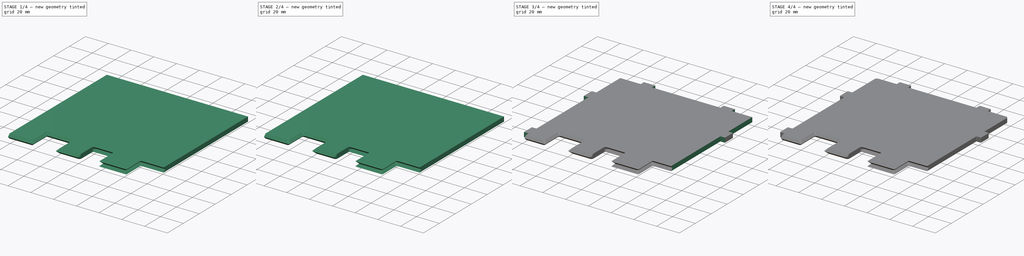
[diagram: build sequence overview — one tinted view per stage of 4, left to right]
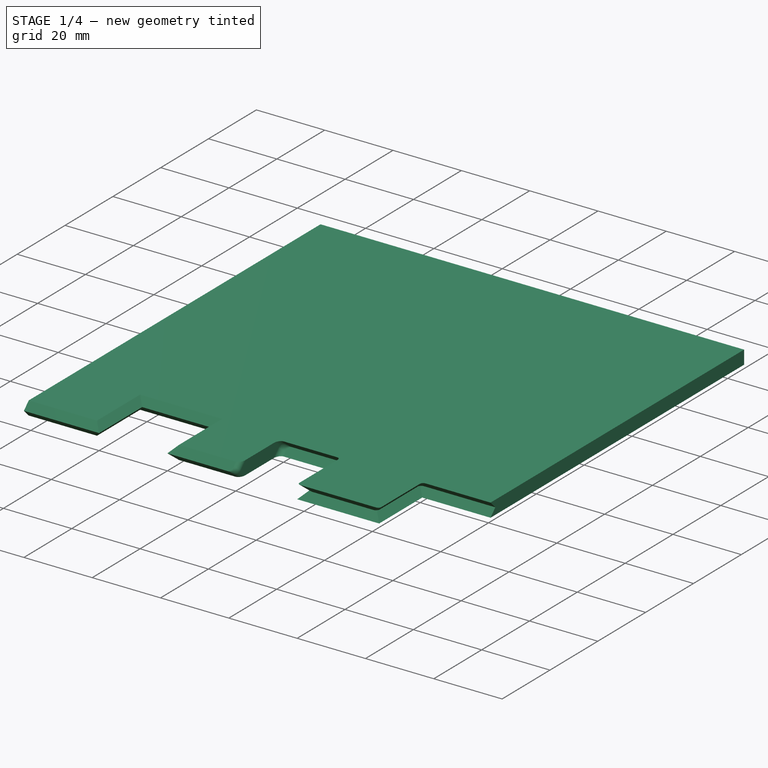
[diagram: stage 1 of 4 — iso view after this stage's code; geometry added in this stage tinted green]
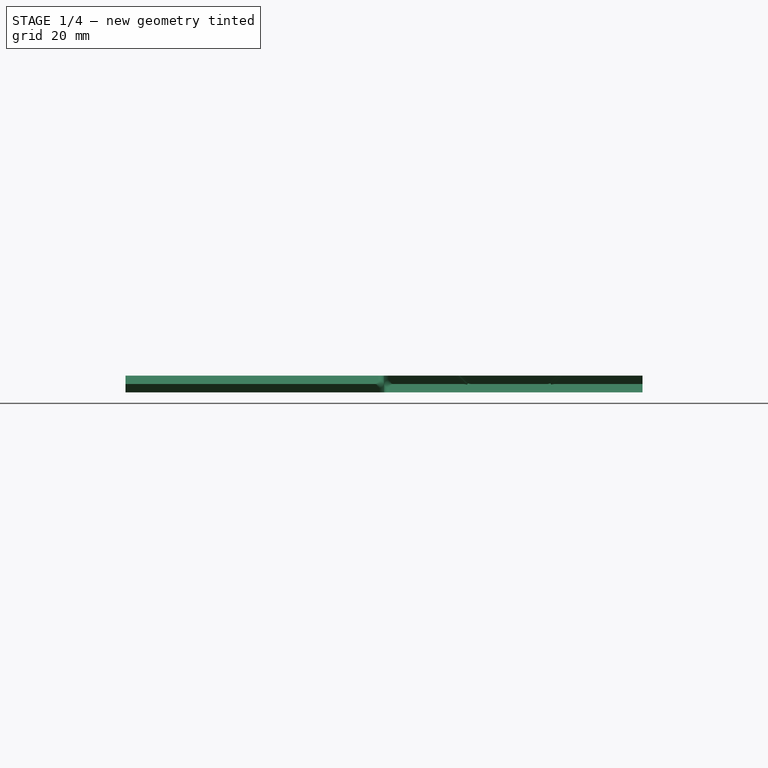
[diagram: stage 1 of 4 — front view after this stage's code; geometry added in this stage tinted green]
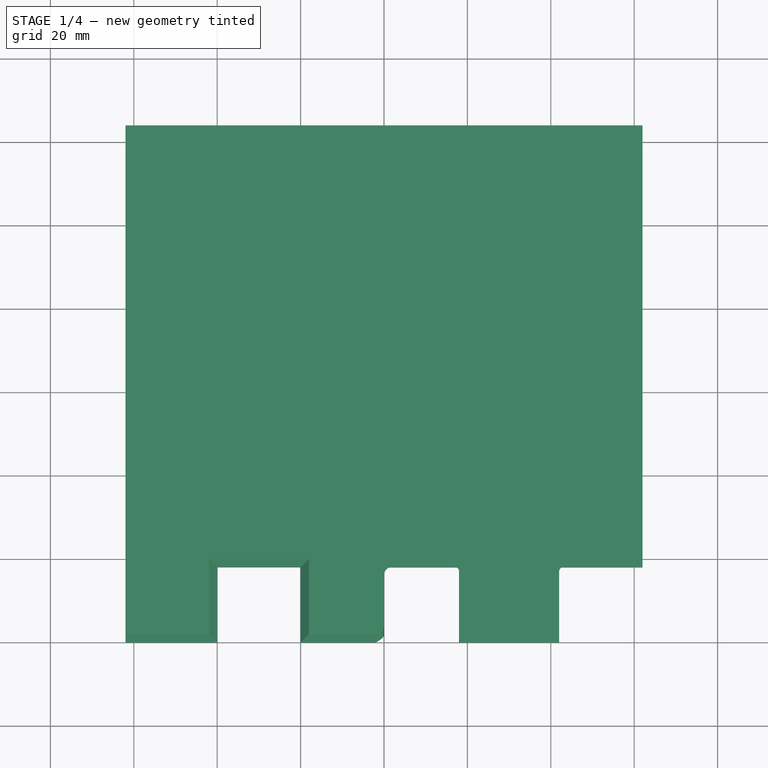
[diagram: stage 1 of 4 — top view after this stage's code; geometry added in this stage tinted green]
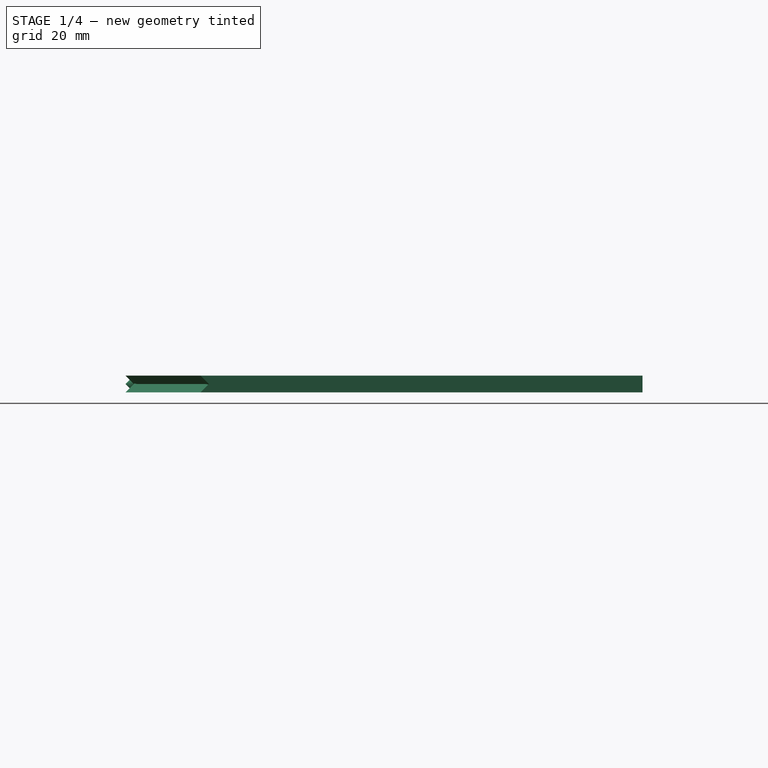
[diagram: stage 1 of 4 — right view after this stage's code; geometry added in this stage tinted green]
FCSTD DOCUMENT  (FreeCAD 0.18R16131 (Git))
Label: HBlock1Half
License: All rights reserved
LicenseURL: http://en.wikipedia.org/wiki/All_rights_reserved
objects: Sketcher::SketchObject×6, PartDesign::Fillet×6, PartDesign::Plane×2, PartDesign::Pocket×2, PartDesign::Pad×1, PartDesign::SubtractiveLoft×1, PartDesign::Body×1, App::Part×1, Part::FeaturePython×1
note: 24 computed .brp shape members not serialized (recipe doc carries the construction recipe); baked Part::Feature solids carry a one-line shape summary decoded from their .brp

FEATURE [Sketcher::SketchObject] Sketch
  MapMode = 5
  Support = -> [XY_Plane001]
  sketch-geometry (4):
    g0: LineSegment StartX=-62 StartY=0 StartZ=0 EndX=62 EndY=0 EndZ=0
    g1: LineSegment StartX=62 StartY=0 StartZ=0 EndX=62 EndY=124 EndZ=0
    g2: LineSegment StartX=62 StartY=124 StartZ=0 EndX=-62 EndY=124 EndZ=0
    g3: LineSegment StartX=-62 StartY=124 StartZ=0 EndX=-62 EndY=0 EndZ=0
  constraints (11):
    c: Coincident(g0,g1)
    c: Coincident(g1,g2)
    c: Coincident(g2,g3)
    c: Coincident(g3,g0)
    c: Horizontal(g0)
    c: Vertical(g1)
    c: Vertical(g3)
    c: PointOnObject(g0,g-1)
    c: Symmetric(g2,g1,g-2)
    c: Distance(g2) = 124
    c: Distance(g3) = 124
FEATURE [PartDesign::Pad] Pad
  Length = 4
  Length2 = 100
  Midplane = true
  Profile = -> Sketch
  Type = 0
FEATURE [Sketcher::SketchObject] Sketch001  label="NotchMid_Sketch"
  MapMode = 5
  Support = -> [XY_Plane001]
  sketch-geometry (14):
    g0: LineSegment StartX=-40 StartY=0 StartZ=0 EndX=-40 EndY=18 EndZ=0
    g1: LineSegment StartX=-40 StartY=18 StartZ=0 EndX=-20 EndY=18 EndZ=0
    g2: LineSegment StartX=-20 StartY=18 StartZ=0 EndX=-20 EndY=0 EndZ=0
    g3: LineSegment StartX=-20 StartY=0 StartZ=0 EndX=0 EndY=0 EndZ=0
    g4: LineSegment StartX=0 StartY=0 StartZ=0 EndX=0 EndY=20 EndZ=0
    g5: LineSegment StartX=0 StartY=20 StartZ=0 EndX=20 EndY=20 EndZ=0
    g6: LineSegment StartX=20 StartY=20 StartZ=0 EndX=20 EndY=2 EndZ=0
    g7: LineSegment StartX=20 StartY=2 StartZ=0 EndX=40 EndY=2 EndZ=0
    g8: LineSegment StartX=40 StartY=2 StartZ=0 EndX=40 EndY=20 EndZ=0
    g9: LineSegment StartX=40 StartY=20 StartZ=0 EndX=70 EndY=20 EndZ=0
    g10: LineSegment StartX=-40 StartY=0 StartZ=0 EndX=-70 EndY=0 EndZ=0
    g11: LineSegment StartX=-70 StartY=0 StartZ=0 EndX=-70 EndY=-20 EndZ=0
    g12: LineSegment StartX=-70 StartY=-20 StartZ=0 EndX=70 EndY=-20 EndZ=0
    g13: LineSegment StartX=70 StartY=-20 StartZ=0 EndX=70 EndY=20 EndZ=0
  constraints (40):
    c: PointOnObject(g0,g-1)
    c: Vertical(g0)
    c: Coincident(g1,g0)
    c: Horizontal(g1)
    c: Coincident(g2,g1)
    c: Vertical(g2)
    c: Coincident(g3,g2)
    c: Coincident(g3,g-1)
    c: Coincident(g4,g3)
    c: PointOnObject(g4,g-2)
    c: Coincident(g5,g4)
    c: Horizontal(g5)
    c: Coincident(g6,g5)
    c: Vertical(g6)
    c: Coincident(g7,g6)
    c: Coincident(g8,g7)
    c: Vertical(g8)
    c: Coincident(g9,g8)
    c: Horizontal(g9)
    c: Coincident(g10,g0)
    c: PointOnObject(g10,g-1)
    c: Equal(g0,g2)
    c: Equal(g6,g8)
    c: Coincident(g11,g10)
    c: Vertical(g11)
    c: Coincident(g12,g11)
    c: Coincident(g13,g12)
    c: Coincident(g13,g9)
    c: Vertical(g13)
    c: Distance(g12) = 140
    c: Distance(g0) = 18
    c: Distance(g11) = 20
    c: Symmetric(g11,g12,g-2)
    c: Distance(g1) = 20
    c: Distance(g3) = 20
    c: Distance(g5) = 20
    c: Distance(g7) = 20
    c: Distance(g8) = 18
    c: Horizontal(g7)
    c: DistanceY(g-1,g7) = 2
FEATURE [PartDesign::Plane] DatumPlane  label="NotchTop_Plane"
  AttachmentOffset = pos=(0,0,2) rot=(0,0,1;0rad)
  Length = 149.781
  MapMode = 5
  Placement = pos=(0,0,2) rot=(0,0,1;0rad)
  ResizeMode = 0
  Support = -> [XY_Plane001]
  Width = 159.781
FEATURE [PartDesign::Plane] DatumPlane001  label="NotchBottom_Plane"
  AttachmentOffset = pos=(0,0,-2) rot=(0,0,1;0rad)
  Length = 149.781
  MapMode = 5
  Placement = pos=(0,0,-2) rot=(0,0,1;0rad)
  ResizeMode = 0
  Support = -> [XY_Plane001]
  Width = 159.781
FEATURE [Sketcher::SketchObject] Sketch002  label="NotchTop_Sketch"
  MapMode = 5
  Placement = pos=(0,0,2) rot=(0,0,1;0rad)
  Support = -> [DatumPlane]
  sketch-geometry (14):
    g0: LineSegment StartX=-42 StartY=2 StartZ=0 EndX=-42 EndY=20 EndZ=0
    g1: LineSegment StartX=-42 StartY=20 StartZ=0 EndX=-18 EndY=20 EndZ=0
    g2: LineSegment StartX=-18 StartY=20 StartZ=0 EndX=-18 EndY=2 EndZ=0
    g3: LineSegment StartX=-18 StartY=2 StartZ=0 EndX=0 EndY=2 EndZ=0
    g4: LineSegment StartX=0 StartY=2 StartZ=0 EndX=0 EndY=18 EndZ=0
    g5: LineSegment StartX=0 StartY=18 StartZ=0 EndX=18 EndY=18 EndZ=0
    g6: LineSegment StartX=18 StartY=18 StartZ=0 EndX=18 EndY=0 EndZ=0
    g7: LineSegment StartX=18 StartY=0 StartZ=0 EndX=42 EndY=0 EndZ=0
    g8: LineSegment StartX=42 StartY=0 StartZ=0 EndX=42 EndY=18 EndZ=0
    g9: LineSegment StartX=42 StartY=18 StartZ=0 EndX=70 EndY=18 EndZ=0
    g10: LineSegment StartX=-42 StartY=2 StartZ=0 EndX=-70 EndY=2 EndZ=0
    g11: LineSegment StartX=-70 StartY=2 StartZ=0 EndX=-70 EndY=-18 EndZ=0
    g12: LineSegment StartX=-70 StartY=-18 StartZ=0 EndX=70 EndY=-18 EndZ=0
    g13: LineSegment StartX=70 StartY=-18 StartZ=0 EndX=70 EndY=18 EndZ=0
  constraints (41):
    c: Vertical(g0)
    c: Coincident(g1,g0)
    c: Horizontal(g1)
    c: Coincident(g2,g1)
    c: Vertical(g2)
    c: Coincident(g3,g2)
    c: PointOnObject(g4,g-2)
    c: Coincident(g5,g4)
    c: Horizontal(g5)
    c: Coincident(g6,g5)
    c: Vertical(g6)
    c: Coincident(g7,g6)
    c: Coincident(g8,g7)
    c: Vertical(g8)
    c: Coincident(g9,g8)
    c: Horizontal(g9)
    c: Coincident(g10,g0)
    c: Equal(g0,g2)
    c: Equal(g6,g8)
    c: Coincident(g11,g10)
    c: Vertical(g11)
    c: Coincident(g12,g11)
    c: Coincident(g13,g12)
    c: Coincident(g13,g9)
    c: Vertical(g13)
    c: Distance(g12) = 140
    c: Distance(g0) = 18
    c: Distance(g11) = 20
    c: Symmetric(g11,g12,g-2)
    c: Distance(g1) = 24
    c: Distance(g3) = 18
    c: Distance(g5) = 18
    c: Distance(g7) = 24
    c: Distance(g8) = 18
    c: Horizontal(g7)
    c: PointOnObject(g7,g-1)
    c: Horizontal(g10)
    c: DistanceY(g-1,g0) = 2
    c: Vertical(g4)
    c: Coincident(g4,g3)
    c: Horizontal(g3)
FEATURE [Sketcher::SketchObject] Sketch003  label="NotchBottom_Sketch"
  MapMode = 5
  Placement = pos=(0,0,-2) rot=(0,0,1;0rad)
  Support = -> [DatumPlane001]
  sketch-geometry (14):
    g0: LineSegment StartX=-42 StartY=2 StartZ=0 EndX=-42 EndY=20 EndZ=0
    g1: LineSegment StartX=-42 StartY=20 StartZ=0 EndX=-18 EndY=20 EndZ=0
    g2: LineSegment StartX=-18 StartY=20 StartZ=0 EndX=-18 EndY=2 EndZ=0
    g3: LineSegment StartX=-18 StartY=2 StartZ=0 EndX=0 EndY=2 EndZ=0
    g4: LineSegment StartX=0 StartY=2 StartZ=0 EndX=0 EndY=18 EndZ=0
    g5: LineSegment StartX=0 StartY=18 StartZ=0 EndX=18 EndY=18 EndZ=0
    g6: LineSegment StartX=18 StartY=18 StartZ=0 EndX=18 EndY=0 EndZ=0
    g7: LineSegment StartX=18 StartY=0 StartZ=0 EndX=42 EndY=0 EndZ=0
    g8: LineSegment StartX=42 StartY=0 StartZ=0 EndX=42 EndY=18 EndZ=0
    g9: LineSegment StartX=42 StartY=18 StartZ=0 EndX=70 EndY=18 EndZ=0
    g10: LineSegment StartX=-42 StartY=2 StartZ=0 EndX=-70 EndY=2 EndZ=0
    g11: LineSegment StartX=-70 StartY=2 StartZ=0 EndX=-70 EndY=-18 EndZ=0
    g12: LineSegment StartX=-70 StartY=-18 StartZ=0 EndX=70 EndY=-18 EndZ=0
    g13: LineSegment StartX=70 StartY=-18 StartZ=0 EndX=70 EndY=18 EndZ=0
  constraints (41):
    c: Vertical(g0)
    c: Coincident(g1,g0)
    c: Horizontal(g1)
    c: Coincident(g2,g1)
    c: Vertical(g2)
    c: Coincident(g3,g2)
    c: PointOnObject(g4,g-2)
    c: Coincident(g5,g4)
    c: Horizontal(g5)
    c: Coincident(g6,g5)
    c: Vertical(g6)
    c: Coincident(g7,g6)
    c: Coincident(g8,g7)
    c: Vertical(g8)
    c: Coincident(g9,g8)
    c: Horizontal(g9)
    c: Coincident(g10,g0)
    c: Equal(g0,g2)
    c: Equal(g6,g8)
    c: Coincident(g11,g10)
    c: Vertical(g11)
    c: Coincident(g12,g11)
    c: Coincident(g13,g12)
    c: Coincident(g13,g9)
    c: Vertical(g13)
    c: Distance(g12) = 140
    c: Distance(g0) = 18
    c: Distance(g11) = 20
    c: Symmetric(g11,g12,g-2)
    c: Distance(g1) = 24
    c: Distance(g3) = 18
    c: Distance(g5) = 18
    c: Distance(g7) = 24
    c: Distance(g8) = 18
    c: Horizontal(g7)
    c: PointOnObject(g7,g-1)
    c: Horizontal(g10)
    c: DistanceY(g-1,g0) = 2
    c: Vertical(g4)
    c: Coincident(g4,g3)
    c: Horizontal(g3)
FEATURE [PartDesign::SubtractiveLoft] SubtractiveLoft
  BaseFeature = -> Pad
  Closed = false
  Profile = -> Sketch003
  Ruled = true
  Sections = -> [Sketch001,Sketch002]
FEATURE [PartDesign::Fillet] Fillet
  Base = -> SubtractiveLoft [Edge49,Edge51,Edge47,Edge45,Edge65,Edge64,Edge19,Edge21]
  BaseFeature = -> SubtractiveLoft
  Radius = 1.47
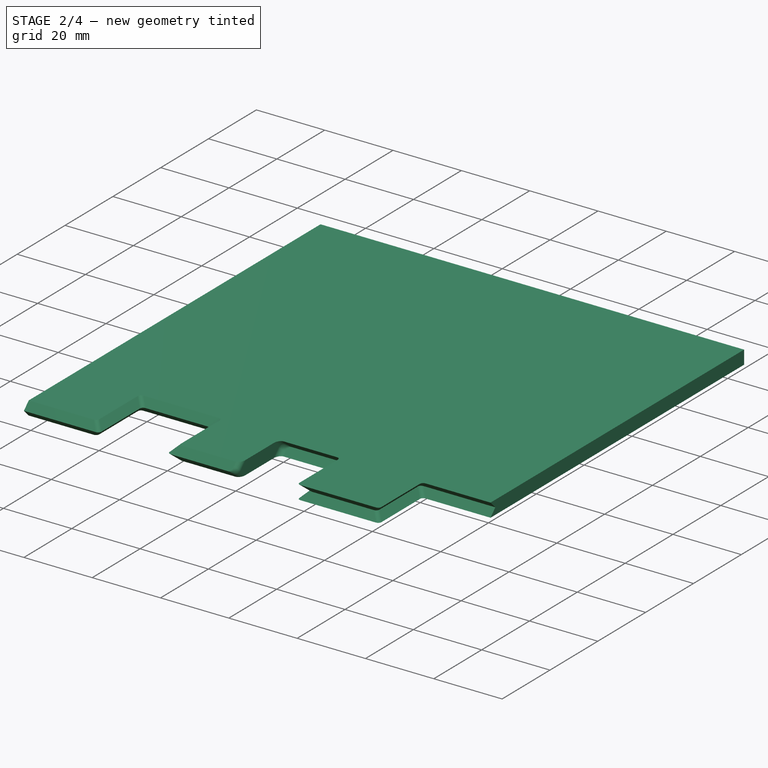
[diagram: stage 2 of 4 — iso view after this stage's code; geometry added in this stage tinted green]
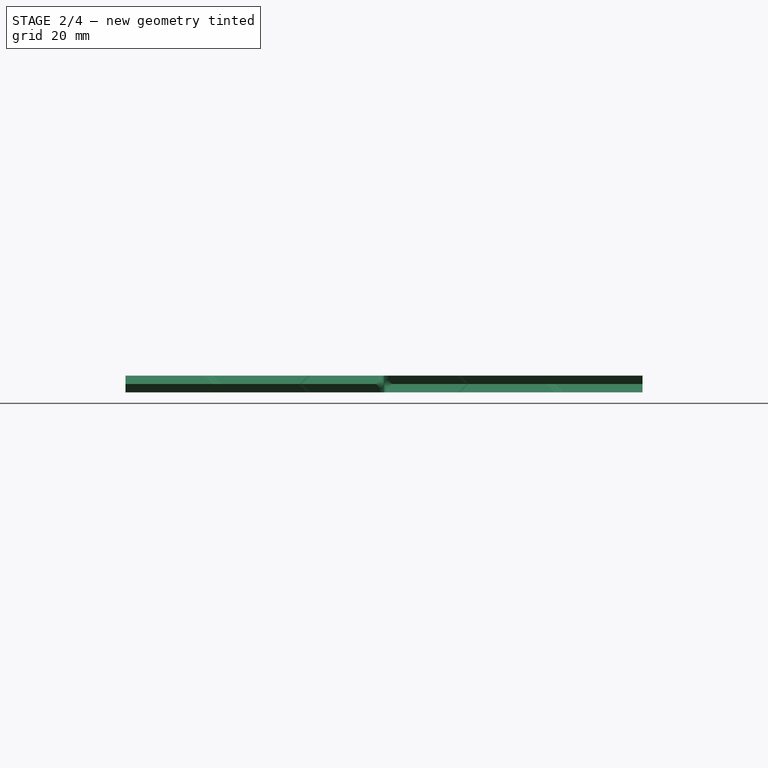
[diagram: stage 2 of 4 — front view after this stage's code; geometry added in this stage tinted green]
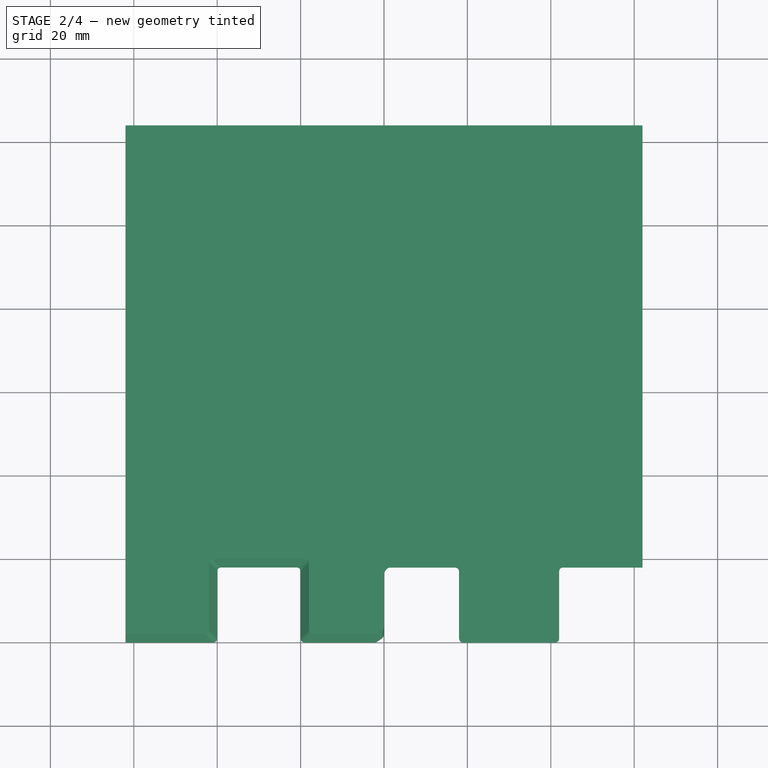
[diagram: stage 2 of 4 — top view after this stage's code; geometry added in this stage tinted green]
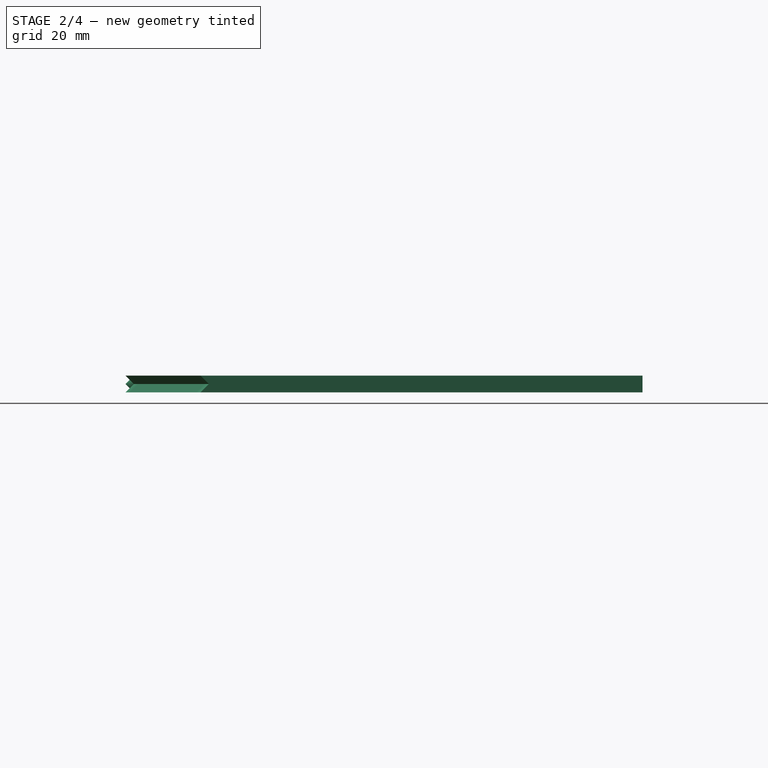
[diagram: stage 2 of 4 — right view after this stage's code; geometry added in this stage tinted green]
FEATURE [PartDesign::Fillet] Fillet001
  Base = -> Fillet [Edge18,Edge28,Edge35,Edge38]
  BaseFeature = -> Fillet
  Radius = 1.47
FEATURE [PartDesign::Fillet] Fillet002
  Base = -> Fillet001 [Edge83,Edge89,Edge93,Edge97]
  BaseFeature = -> Fillet001
  Radius = 1.47
FEATURE [PartDesign::Fillet] Fillet003
  Base = -> Fillet002 [Edge1,Edge10,Edge46,Edge93]
  BaseFeature = -> Fillet002
  Radius = 1.47
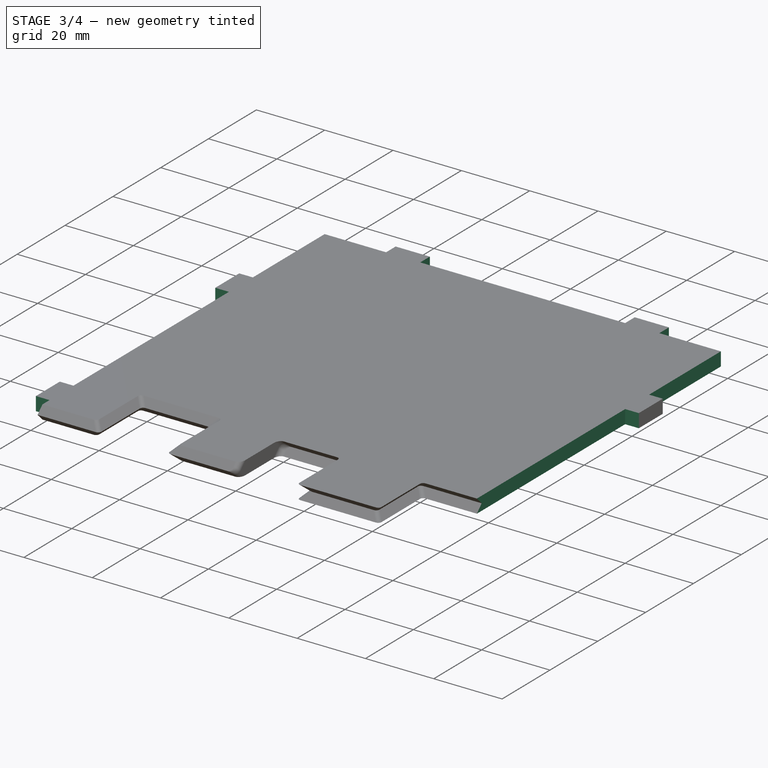
[diagram: stage 3 of 4 — iso view after this stage's code; geometry added in this stage tinted green]
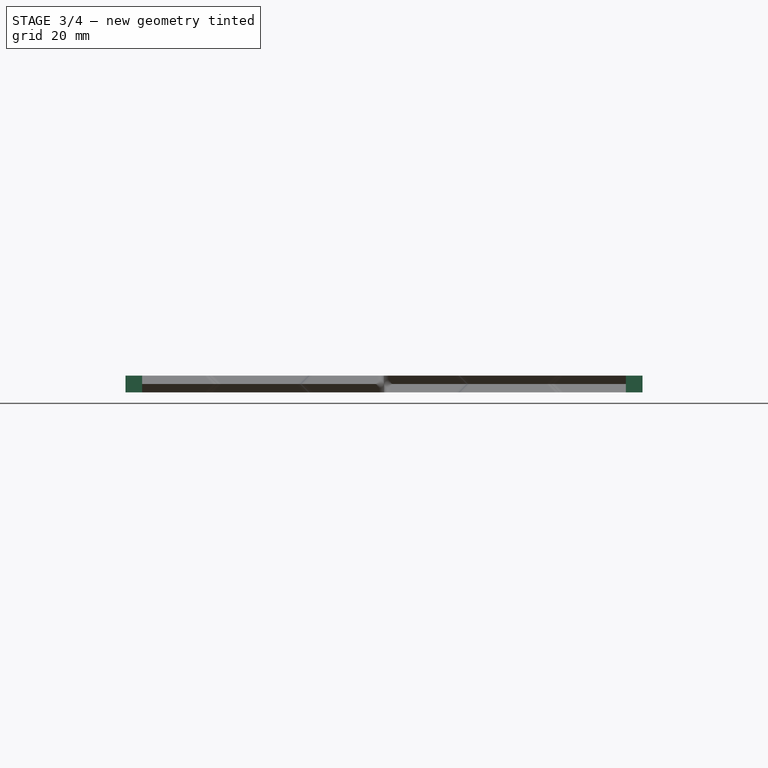
[diagram: stage 3 of 4 — front view after this stage's code; geometry added in this stage tinted green]
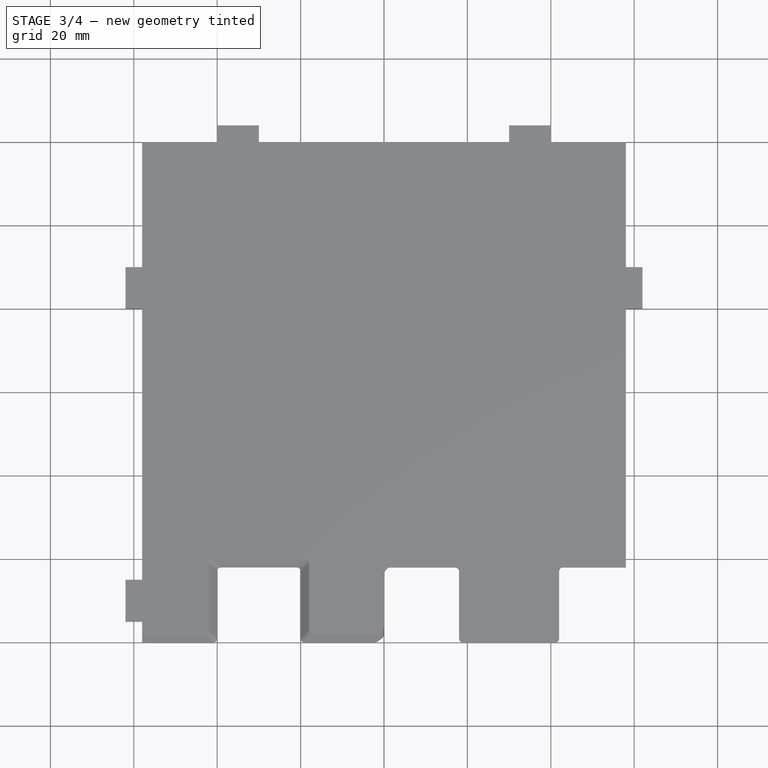
[diagram: stage 3 of 4 — top view after this stage's code; geometry added in this stage tinted green]
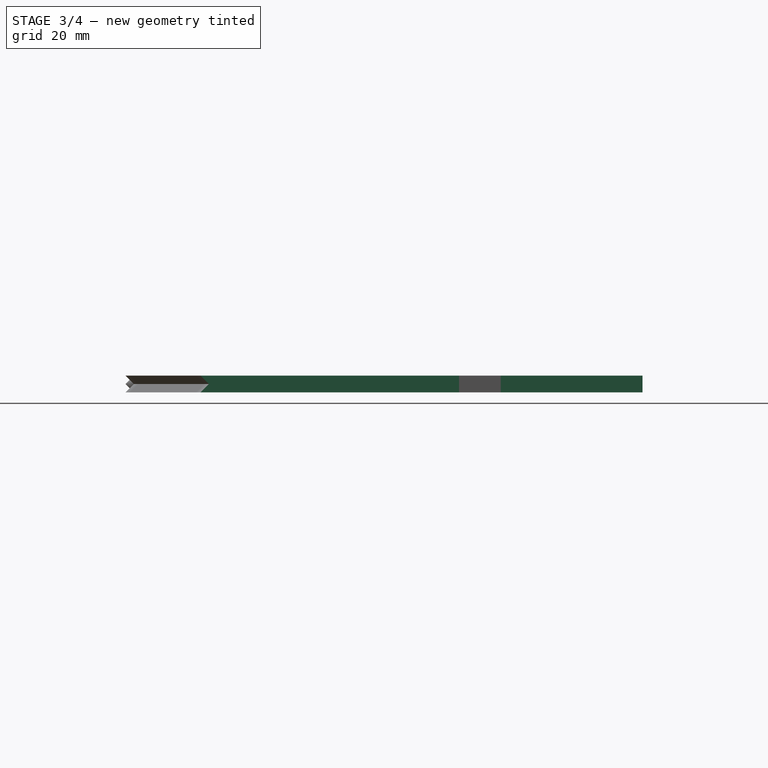
[diagram: stage 3 of 4 — right view after this stage's code; geometry added in this stage tinted green]
FEATURE [Sketcher::SketchObject] Sketch004
  MapMode = 5
  Support = -> [XY_Plane001]
  sketch-geometry (24):
    g0: LineSegment StartX=-58 StartY=5 StartZ=0 EndX=-62 EndY=5 EndZ=0
    g1: LineSegment StartX=-62 StartY=5 StartZ=0 EndX=-62 EndY=15 EndZ=0
    g2: LineSegment StartX=-62 StartY=15 StartZ=0 EndX=-58 EndY=15 EndZ=0
    g3: LineSegment StartX=-58 StartY=15 StartZ=0 EndX=-58 EndY=80 EndZ=0
    g4: LineSegment StartX=-58 StartY=80 StartZ=0 EndX=-62 EndY=80 EndZ=0
    g5: LineSegment StartX=-62 StartY=80 StartZ=0 EndX=-62 EndY=90 EndZ=0
    g6: LineSegment StartX=-62 StartY=90 StartZ=0 EndX=-58 EndY=90 EndZ=0
    g7: LineSegment StartX=-58 StartY=90 StartZ=0 EndX=-58 EndY=124 EndZ=0
    g8: LineSegment StartX=-58 StartY=124 StartZ=0 EndX=-88 EndY=124 EndZ=0
    g9: LineSegment StartX=-88 StartY=124 StartZ=0 EndX=-88 EndY=0 EndZ=0
    g10: LineSegment StartX=-88 StartY=0 StartZ=0 EndX=-58 EndY=0 EndZ=0
    g11: LineSegment StartX=-58 StartY=5 StartZ=0 EndX=-58 EndY=0 EndZ=0
    g12: LineSegment StartX=58 StartY=5 StartZ=0 EndX=62 EndY=5 EndZ=0
    g13: LineSegment StartX=62 StartY=5 StartZ=0 EndX=62 EndY=15 EndZ=0
    g14: LineSegment StartX=62 StartY=15 StartZ=0 EndX=58 EndY=15 EndZ=0
    g15: LineSegment StartX=58 StartY=15 StartZ=0 EndX=58 EndY=80 EndZ=0
    g16: LineSegment StartX=58 StartY=80 StartZ=0 EndX=62 EndY=80 EndZ=0
    g17: LineSegment StartX=62 StartY=80 StartZ=0 EndX=62 EndY=90 EndZ=0
    g18: LineSegment StartX=62 StartY=90 StartZ=0 EndX=58 EndY=90 EndZ=0
    g19: LineSegment StartX=58 StartY=90 StartZ=0 EndX=58 EndY=124 EndZ=0
    g20: LineSegment StartX=58 StartY=124 StartZ=0 EndX=88 EndY=124 EndZ=0
    g21: LineSegment StartX=88 StartY=124 StartZ=0 EndX=88 EndY=0 EndZ=0
    g22: LineSegment StartX=88 StartY=0 StartZ=0 EndX=58 EndY=0 EndZ=0
    g23: LineSegment StartX=58 StartY=5 StartZ=0 EndX=58 EndY=0 EndZ=0
  constraints (71):
    c: Coincident(g1,g0)
    c: Vertical(g1)
    c: Coincident(g2,g1)
    c: Horizontal(g2)
    c: Coincident(g3,g2)
    c: Vertical(g3)
    c: Coincident(g4,g3)
    c: Coincident(g5,g4)
    c: Vertical(g5)
    c: Coincident(g6,g5)
    c: Horizontal(g6)
    c: Coincident(g7,g6)
    c: Vertical(g7)
    c: Coincident(g8,g7)
    c: Horizontal(g8)
    c: Coincident(g9,g8)
    c: PointOnObject(g9,g-1)
    c: Vertical(g9)
    c: Coincident(g10,g9)
    c: Horizontal(g10)
    c: Horizontal(g0)
    c: Coincident(g11,g0)
    c: Coincident(g11,g10)
    c: Vertical(g11)
    c: Horizontal(g4)
    c: Equal(g0,g2)
    c: Equal(g2,g4)
    c: Equal(g4,g6)
    c: Equal(g5,g1)
    c: Distance(g6) = 4
    c: Distance(g5) = 10
    c: Distance(g11) = 5
    c: Distance(g7) = 34
    c: Distance(g8) = 30
    c: Distance(g9) = 124
    c: Coincident(g13,g12)
    c: Vertical(g13)
    c: Coincident(g14,g13)
    c: Horizontal(g14)
    c: Coincident(g15,g14)
    c: Vertical(g15)
    c: Coincident(g16,g15)
    c: Coincident(g17,g16)
    c: Vertical(g17)
    c: Coincident(g18,g17)
    c: Horizontal(g18)
    c: Coincident(g19,g18)
    c: Vertical(g19)
    c: Coincident(g20,g19)
    c: Horizontal(g20)
    c: Coincident(g21,g20)
    c: Vertical(g21)
    c: Coincident(g22,g21)
    c: Horizontal(g22)
    c: Horizontal(g12)
    c: Coincident(g23,g12)
    c: Coincident(g23,g22)
    c: Vertical(g23)
    c: Horizontal(g16)
    c: Equal(g12,g14)
    c: Equal(g14,g16)
    c: Equal(g16,g18)
    c: Equal(g17,g13)
    c: Distance(g18) = 4
    c: Distance(g17) = 10
    c: Distance(g23) = 5
    c: Distance(g19) = 34
    c: Distance(g20) = 30
    c: Distance(g21) = 124
    c: Symmetric(g22,g10,g-2)
    c: Distance(g10,g22) = 116
FEATURE [PartDesign::Pocket] Pocket
  BaseFeature = -> Fillet003
  Length = 5
  Length2 = 100
  Midplane = true
  Profile = -> Sketch004
  Type = 1
FEATURE [Sketcher::SketchObject] Sketch005
  MapMode = 5
  Support = -> [XY_Plane001]
  sketch-geometry (12):
    g0: LineSegment StartX=-60 StartY=120 StartZ=0 EndX=-40 EndY=120 EndZ=0
    g1: LineSegment StartX=-40 StartY=120 StartZ=0 EndX=-40 EndY=124 EndZ=0
    g2: LineSegment StartX=-40 StartY=124 StartZ=0 EndX=-30 EndY=124 EndZ=0
    g3: LineSegment StartX=-30 StartY=124 StartZ=0 EndX=-30 EndY=120 EndZ=0
    g4: LineSegment StartX=-30 StartY=120 StartZ=0 EndX=30 EndY=120 EndZ=0
    g5: LineSegment StartX=30 StartY=120 StartZ=0 EndX=30 EndY=124 EndZ=0
    g6: LineSegment StartX=30 StartY=124 StartZ=0 EndX=40 EndY=124 EndZ=0
    g7: LineSegment StartX=40 StartY=124 StartZ=0 EndX=40 EndY=120 EndZ=0
    g8: LineSegment StartX=40 StartY=120 StartZ=0 EndX=60 EndY=120 EndZ=0
    g9: LineSegment StartX=60 StartY=120 StartZ=0 EndX=60 EndY=130 EndZ=0
    g10: LineSegment StartX=60 StartY=130 StartZ=0 EndX=-60 EndY=130 EndZ=0
    g11: LineSegment StartX=-60 StartY=130 StartZ=0 EndX=-60 EndY=120 EndZ=0
  constraints (34):
    c: Horizontal(g0)
    c: Coincident(g1,g0)
    c: Vertical(g1)
    c: Coincident(g2,g1)
    c: Horizontal(g2)
    c: Coincident(g3,g2)
    c: Vertical(g3)
    c: Coincident(g4,g3)
    c: Coincident(g5,g4)
    c: Coincident(g6,g5)
    c: Horizontal(g6)
    c: Coincident(g7,g6)
    c: Vertical(g7)
    c: Coincident(g8,g7)
    c: Horizontal(g8)
    c: Coincident(g9,g8)
    c: Vertical(g9)
    c: Coincident(g10,g9)
    c: Coincident(g11,g10)
    c: Coincident(g11,g0)
    c: Vertical(g5)
    c: Vertical(g11)
    c: Equal(g1,g3)
    c: Equal(g3,g5)
    c: Equal(g5,g7)
    c: Equal(g2,g6)
    c: Distance(g11) = 10
    c: Distance(g1) = 4
    c: Distance(g2) = 10
    c: Symmetric(g3,g4,g-2)
    c: Distance(g4,g3) = 60
    c: Symmetric(g10,g9,g-2)
    c: Distance(g10) = 120
    c: DistanceY(g-1,g0) = 120
FEATURE [PartDesign::Pocket] Pocket001
  BaseFeature = -> Pocket
  Length = 5
  Length2 = 100
  Midplane = true
  Profile = -> Sketch005
  Type = 1
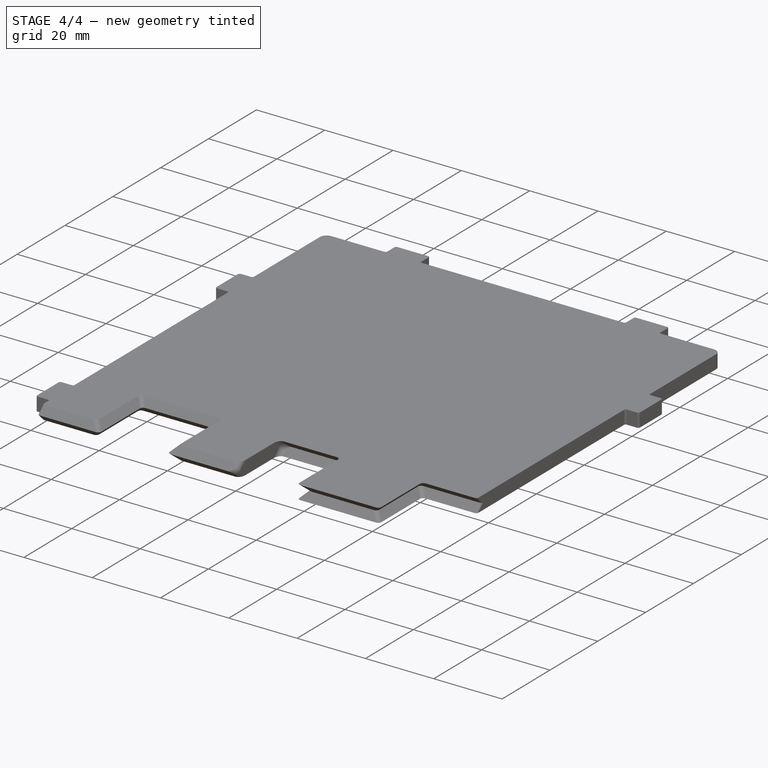
[diagram: stage 4 of 4 — iso view after this stage's code; geometry added in this stage tinted green]
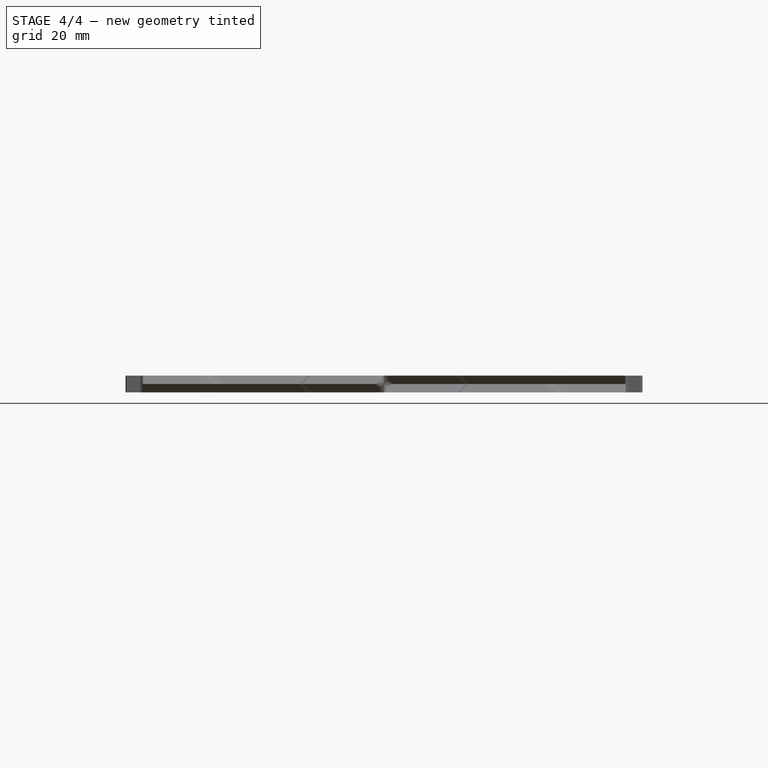
[diagram: stage 4 of 4 — front view after this stage's code; geometry added in this stage tinted green]
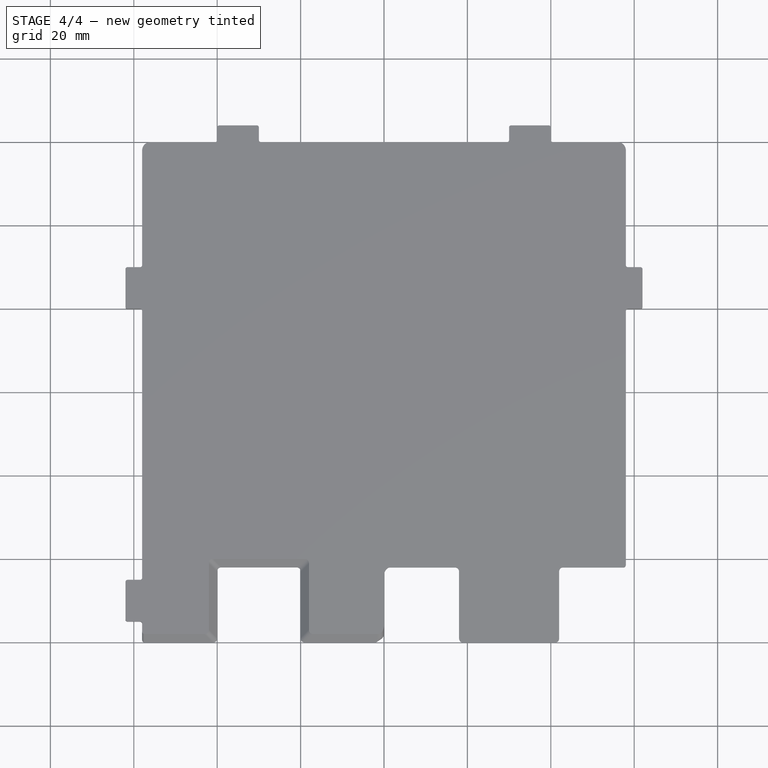
[diagram: stage 4 of 4 — top view after this stage's code; geometry added in this stage tinted green]
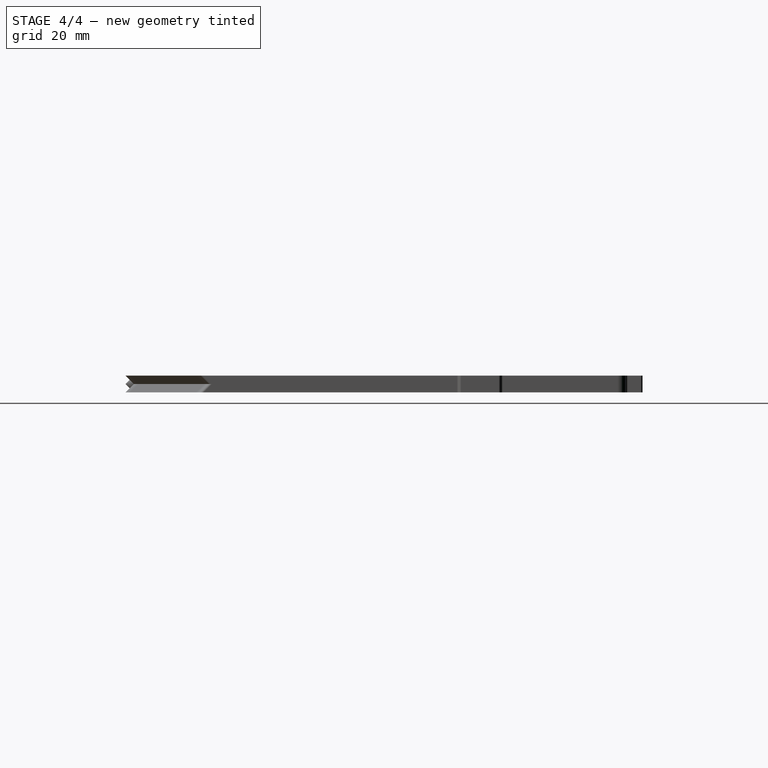
[diagram: stage 4 of 4 — right view after this stage's code; geometry added in this stage tinted green]
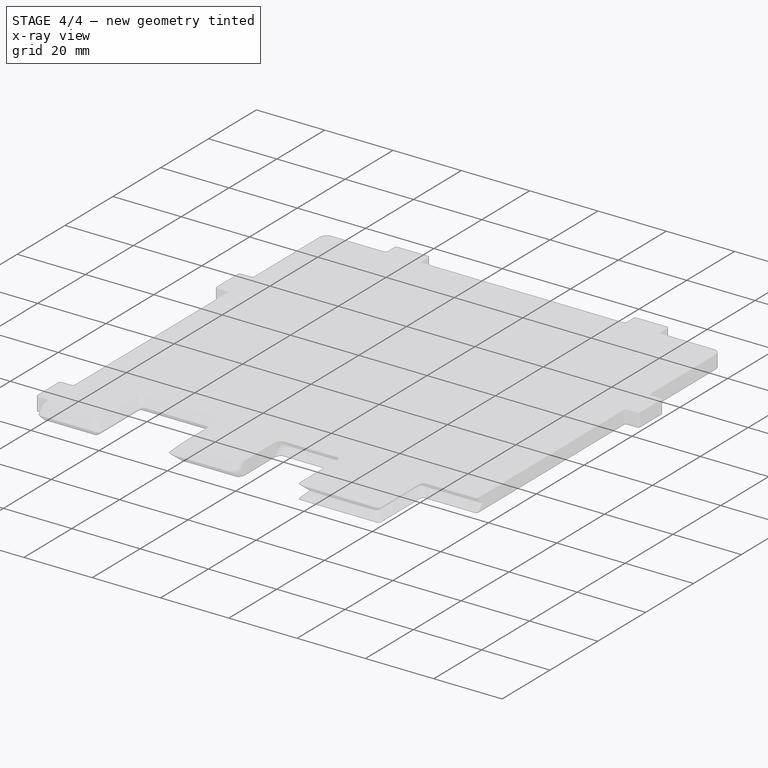
[diagram: stage 4 of 4 — x-ray composite at the iso view; earlier geometry ghosted, this stage's added geometry solid]
FEATURE [PartDesign::Fillet] Fillet004
  Base = -> Pocket001 [Edge90,Edge108]
  BaseFeature = -> Pocket001
  Radius = 2
FEATURE [PartDesign::Fillet] Fillet005
  Base = -> Fillet004 [Edge81,Edge82,Edge77,Edge72,Edge69,Edge65,Edge61,Edge56,Edge53,Edge49,Edge54,Edge59,Edge63,Edge67,Edge71,Edge75,Edge79,Edge84,Edge96,Edge100,Edge104,Edge108,Edge112,Edge111]
  BaseFeature = -> Fillet004
  Radius = 0.5
FEATURE [PartDesign::Body] Body  label="BlockBody"
  Group = -> [Sketch,Pad,Sketch001,DatumPlane,DatumPlane001,Sketch002,Sketch003,SubtractiveLoft,Fillet,Fillet001,Fillet002,Fillet003,Sketch004,Pocket,Sketch005,Pocket001,Fillet004,Fillet005]
  Origin = -> Origin001
  Tip = -> Fillet005
FEATURE [App::Part] Part  label="BlockPart"
  Group = -> [Body]
  Origin = -> Origin
FEATURE [Part::FeaturePython] refine  label="BlockBody_Refined"  # WARN: FeaturePython — macro-defined, semantics opaque (R4)
  Base = -> Body
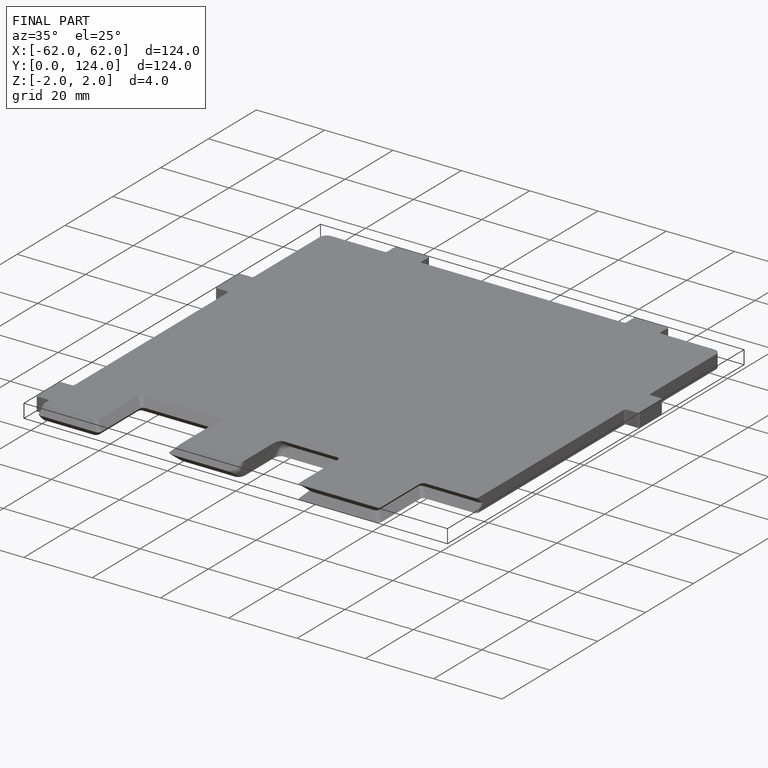
[diagram: finished part — iso view with bounding-box wireframe]
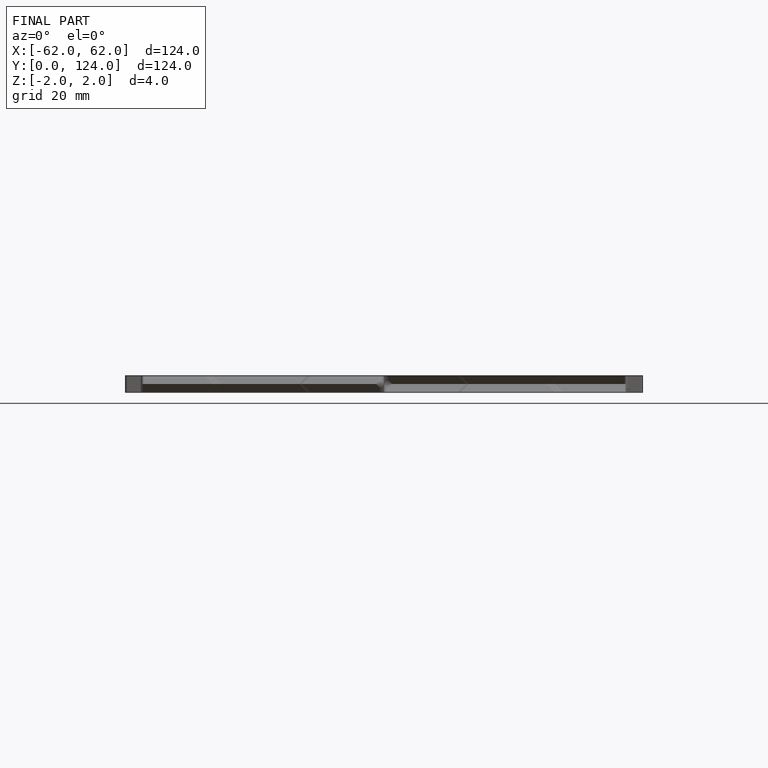
[diagram: finished part — front view with bounding-box wireframe]
